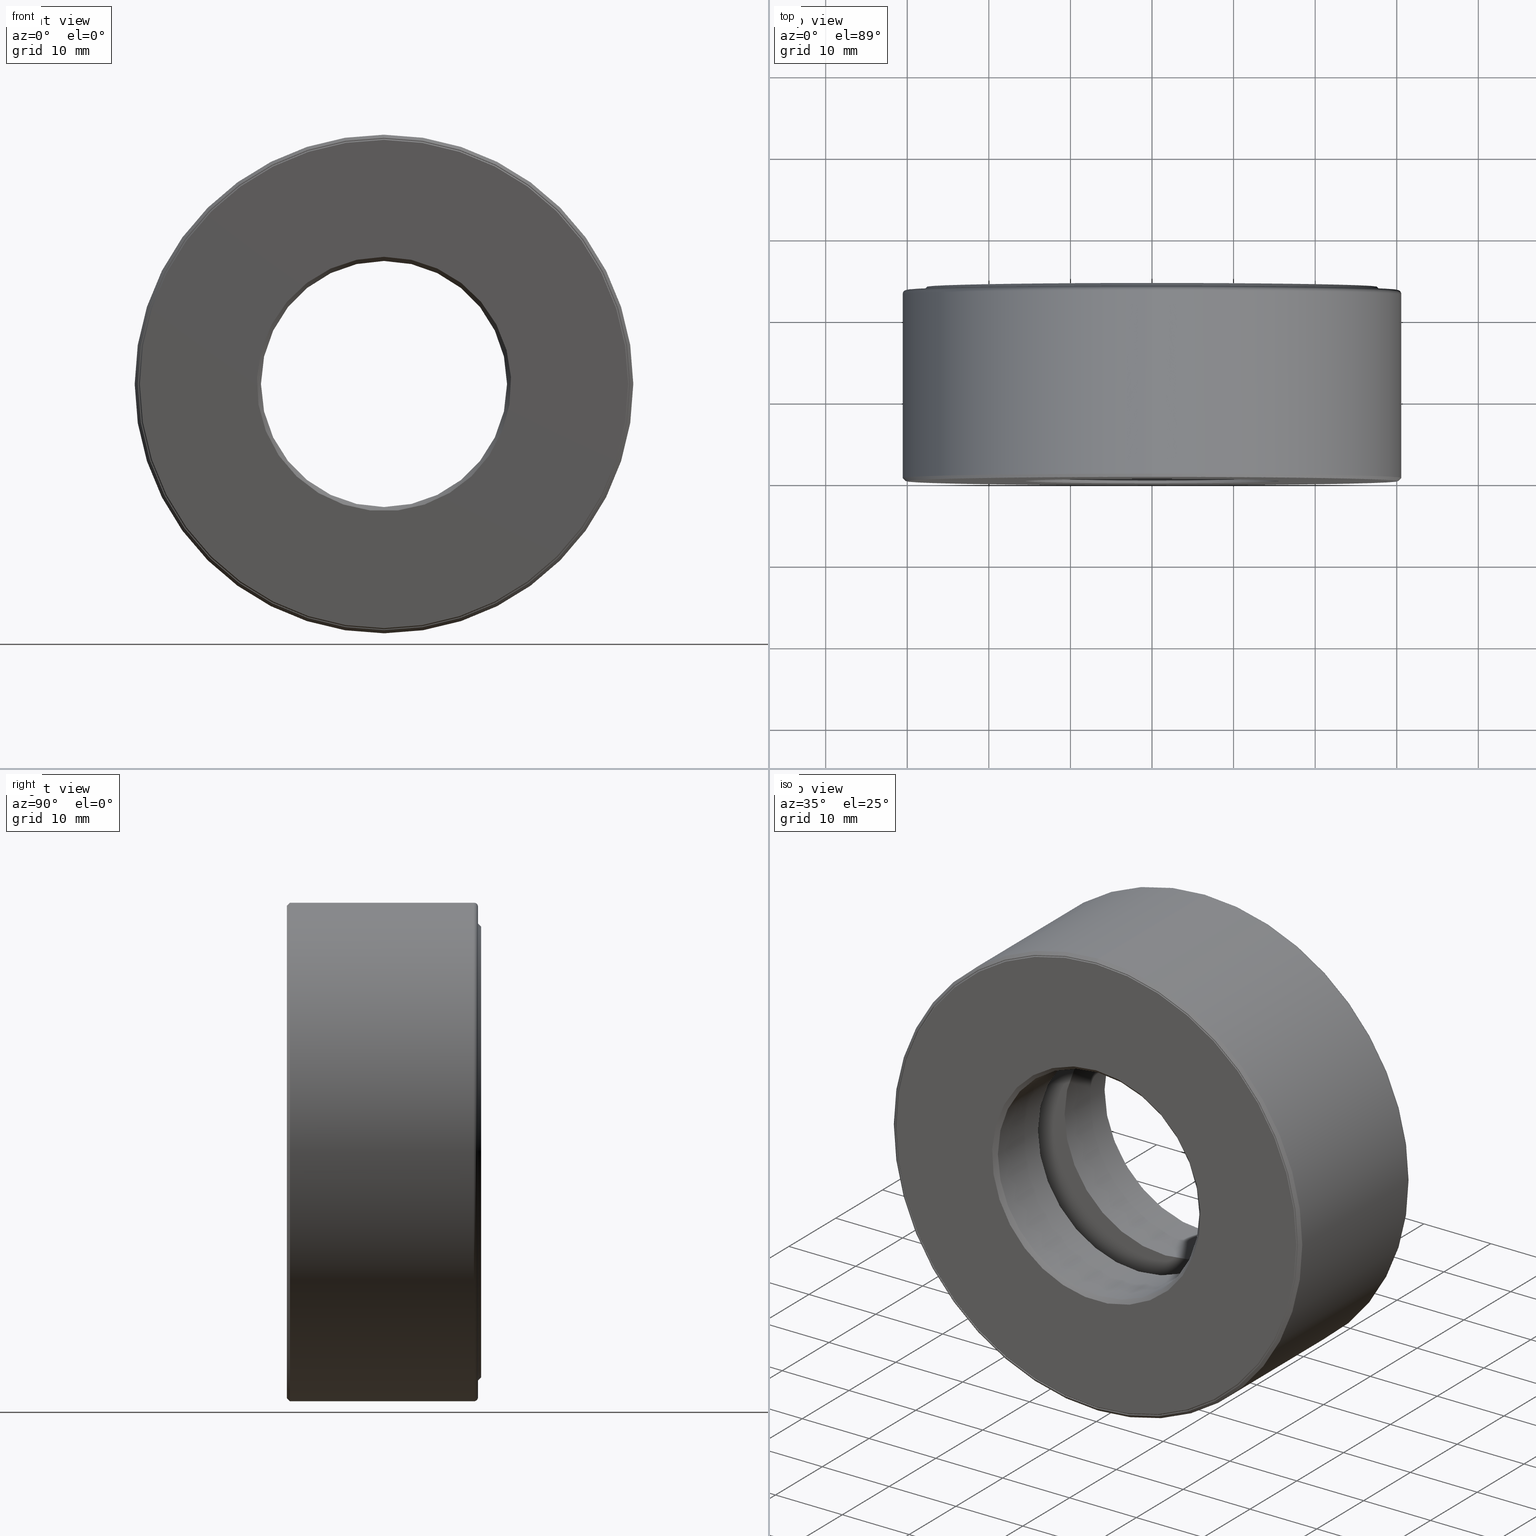
[diagram: canonical four-view strip — front | top / right | iso, engineering-drawing reading convention]
A machine part, canonical four-view strip (front | top / right | iso — engineering-drawing reading convention). The complete STEP part file that produces these views, byte-faithful:
ISO-10303-21;
HEADER;
FILE_DESCRIPTION (( 'STEP AP203' ),
    '1' );
FILE_NAME ('T-100-14.step',
    '2016-06-29T18:27:18',
    ( '' ),
    ( '' ),
    'SwSTEP 2.0',
    'SolidWorks 2016',
    '' );
FILE_SCHEMA (( 'CONFIG_CONTROL_DESIGN' ));
ENDSEC;

DATA;
#1 = AXIS2_PLACEMENT_3D ( 'NONE', #40, #498, #547 ) ;
#2 = CARTESIAN_POINT ( 'NONE',  ( 0.0000000000000000000, 0.0000000000000000000, 0.0000000000000000000 ) ) ;
#3 = ORIENTED_EDGE ( 'NONE', *, *, #193, .F. ) ;
#4 = DIRECTION ( 'NONE',  ( -0.0000000000000000000, 1.000000000000000000, -0.0000000000000000000 ) ) ;
#5 = ORIENTED_EDGE ( 'NONE', *, *, #31, .F. ) ;
#6 = ORIENTED_EDGE ( 'NONE', *, *, #23, .F. ) ;
#7 = ADVANCED_FACE ( 'NONE', ( #178, #138 ), #532, .T. ) ;
#8 = CIRCLE ( 'NONE', #173, 1.203125000000000000 ) ;
#9 = CONICAL_SURFACE ( 'NONE', #494, 0.5937500000000000000, 0.7853981633974431700 ) ;
#10 = LOCAL_TIME ( 14, 27, 18.00000000000000000, #186 ) ;
#11 = APPROVAL ( #337, 'UNSPECIFIED' ) ;
#12 = ORIENTED_EDGE ( 'NONE', *, *, #81, .F. ) ;
#13 = EDGE_CURVE ( 'NONE', #132, #132, #206, .T. ) ;
#14 = EDGE_LOOP ( 'NONE', ( #83 ) ) ;
#15 = DIRECTION ( 'NONE',  ( 0.0000000000000000000, 0.0000000000000000000, 1.000000000000000000 ) ) ;
#16 = FACE_OUTER_BOUND ( 'NONE', #462, .T. ) ;
#17 = VERTEX_POINT ( 'NONE', #72 ) ;
#18 = CARTESIAN_POINT ( 'NONE',  ( 0.0000000000000000000, -6.590143231196515200E-017, 1.183124999999999800 ) ) ;
#19 = AXIS2_PLACEMENT_3D ( 'NONE', #231, #369, #315 ) ;
#20 = ADVANCED_FACE ( 'NONE', ( #25, #385 ), #153, .T. ) ;
#21 = ORIENTED_EDGE ( 'NONE', *, *, #436, .F. ) ;
#22 = EDGE_LOOP ( 'NONE', ( #368 ) ) ;
#23 = EDGE_CURVE ( 'NONE', #540, #540, #259, .T. ) ;
#24 = CARTESIAN_POINT ( 'NONE',  ( 0.0000000000000000000, 0.5812499999999999300, 1.176125000000000100 ) ) ;
#25 = FACE_OUTER_BOUND ( 'NONE', #425, .T. ) ;
#26 = CC_DESIGN_PERSON_AND_ORGANIZATION_ASSIGNMENT ( #442, #292, ( #85 ) ) ;
#27 = FACE_OUTER_BOUND ( 'NONE', #176, .T. ) ;
#28 = FACE_BOUND ( 'NONE', #250, .T. ) ;
#29 =( NAMED_UNIT ( * ) SI_UNIT ( $, .STERADIAN. ) SOLID_ANGLE_UNIT ( ) );
#30 = DIRECTION ( 'NONE',  ( -1.000000000000000000, 0.0000000000000000000, 3.491481338843131800E-015 ) ) ;
#31 = EDGE_CURVE ( 'NONE', #583, #583, #265, .T. ) ;
#32 = EDGE_LOOP ( 'NONE', ( #215 ) ) ;
#33 = ORIENTED_EDGE ( 'NONE', *, *, #180, .F. ) ;
#34 = ADVANCED_FACE ( 'NONE', ( #63, #391 ), #294, .F. ) ;
#35 = EDGE_LOOP ( 'NONE', ( #514 ) ) ;
#36 = FACE_OUTER_BOUND ( 'NONE', #213, .T. ) ;
#37 = DIRECTION ( 'NONE',  ( 0.0000000000000000000, 0.0000000000000000000, 1.000000000000000000 ) ) ;
#38 = VERTEX_POINT ( 'NONE', #534 ) ;
#39 = COORDINATED_UNIVERSAL_TIME_OFFSET ( 5, 0, .BEHIND. ) ;
#40 = CARTESIAN_POINT ( 'NONE',  ( 0.0000000000000000000, 0.9024999999999999700, 0.0000000000000000000 ) ) ;
#41 = CC_DESIGN_APPROVAL ( #11, ( #524 ) ) ;
#42 = DIRECTION ( 'NONE',  ( 0.0000000000000000000, 0.0000000000000000000, 1.000000000000000000 ) ) ;
#43 = CARTESIAN_POINT ( 'NONE',  ( 0.0000000000000000000, 0.3562500000000000700, 0.0000000000000000000 ) ) ;
#44 = EDGE_LOOP ( 'NONE', ( #3 ) ) ;
#45 = DIRECTION ( 'NONE',  ( -0.0000000000000000000, 1.000000000000000000, -0.0000000000000000000 ) ) ;
#46 = ORIENTED_EDGE ( 'NONE', *, *, #436, .T. ) ;
#47 = EDGE_CURVE ( 'NONE', #329, #329, #350, .T. ) ;
#48 = FACE_OUTER_BOUND ( 'NONE', #561, .T. ) ;
#49 = DIRECTION ( 'NONE',  ( -0.0000000000000000000, 1.000000000000000000, 0.0000000000000000000 ) ) ;
#50 = ADVANCED_FACE ( 'NONE', ( #579, #521 ), #296, .F. ) ;
#51 = CARTESIAN_POINT ( 'NONE',  ( 0.0000000000000000000, 0.9225000000000001000, 0.0000000000000000000 ) ) ;
#52 = DIRECTION ( 'NONE',  ( 0.0000000000000000000, -1.000000000000000000, 0.0000000000000000000 ) ) ;
#53 = AXIS2_PLACEMENT_3D ( 'NONE', #106, #199, #277 ) ;
#54 = EDGE_LOOP ( 'NONE', ( #593 ) ) ;
#55 = ADVANCED_FACE ( 'NONE', ( ), #94, .T. ) ;
#56 = DIRECTION ( 'NONE',  ( -0.0000000000000000000, 1.000000000000000000, -0.0000000000000000000 ) ) ;
#57 = CARTESIAN_POINT ( 'NONE',  ( 0.0000000000000000000, 0.9174999999999997600, 0.0000000000000000000 ) ) ;
#58 = DIRECTION ( 'NONE',  ( -0.0000000000000000000, 1.000000000000000000, -0.0000000000000000000 ) ) ;
#59 = ORIENTED_EDGE ( 'NONE', *, *, #355, .F. ) ;
#60 = AXIS2_PLACEMENT_3D ( 'NONE', #86, #397, #258 ) ;
#61 = APPROVAL_DATE_TIME ( #467, #559 ) ;
#62 = DIRECTION ( 'NONE',  ( 0.0000000000000000000, -1.000000000000000000, 0.0000000000000000000 ) ) ;
#63 = FACE_OUTER_BOUND ( 'NONE', #44, .T. ) ;
#64 = DIRECTION ( 'NONE',  ( 0.0000000000000000000, -0.0000000000000000000, -1.000000000000000000 ) ) ;
#65 = VERTEX_POINT ( 'NONE', #168 ) ;
#66 = CALENDAR_DATE ( 2016, 29, 6 ) ;
#67 = AXIS2_PLACEMENT_3D ( 'NONE', #194, #143, #230 ) ;
#68 = CARTESIAN_POINT ( 'NONE',  ( 0.0000000000000000000, 0.3562499999999999000, 1.183124999999999800 ) ) ;
#69 = ORIENTED_EDGE ( 'NONE', *, *, #477, .T. ) ;
#70 = AXIS2_PLACEMENT_3D ( 'NONE', #348, #409, #508 ) ;
#71 = ADVANCED_FACE ( 'NONE', ( #596, #531 ), #88, .T. ) ;
#72 = CARTESIAN_POINT ( 'NONE',  ( 0.0000000000000000000, 0.004999999999999944600, 1.183125000000000000 ) ) ;
#73 = FACE_OUTER_BOUND ( 'NONE', #279, .T. ) ;
#74 = APPROVAL_PERSON_ORGANIZATION ( #533, #559, #76 ) ;
#75 = CARTESIAN_POINT ( 'NONE',  ( 0.0000000000000000000, 0.9024999999999999700, 1.183125000000000000 ) ) ;
#76 = APPROVAL_ROLE ( '' ) ;
#77 = AXIS2_PLACEMENT_3D ( 'NONE', #108, #423, #155 ) ;
#78 = CIRCLE ( 'NONE', #422, 1.088124999999999800 ) ;
#79 = MANIFOLD_SOLID_BREP ( 'Revolve2[1]', #507 ) ;
#80 = VERTEX_POINT ( 'NONE', #291 ) ;
#81 = EDGE_CURVE ( 'NONE', #80, #80, #450, .T. ) ;
#82 = CARTESIAN_POINT ( 'NONE',  ( 0.0000000000000000000, 0.9225000000000001000, 0.0000000000000000000 ) ) ;
#83 = ORIENTED_EDGE ( 'NONE', *, *, #31, .T. ) ;
#84 = DIRECTION ( 'NONE',  ( 0.0000000000000000000, -1.000000000000000000, 0.0000000000000000000 ) ) ;
#85 = SECURITY_CLASSIFICATION ( '', '', #584 ) ;
#86 = CARTESIAN_POINT ( 'NONE',  ( 0.0000000000000000000, 0.5812499999999999300, 0.0000000000000000000 ) ) ;
#87 = DESIGN_CONTEXT ( 'detailed design', #333, 'design' ) ;
#88 = CONICAL_SURFACE ( 'NONE', #469, 1.088124999999999800, 0.7853981633974498300 ) ;
#89 = LOCAL_TIME ( 14, 27, 18.00000000000000000, #39 ) ;
#90 = CARTESIAN_POINT ( 'NONE',  ( 0.0000000000000000000, 0.5812499999999999300, 0.0000000000000000000 ) ) ;
#91 = ADVANCED_FACE ( 'NONE', ( #334, #582 ), #551, .F. ) ;
#92 = ORIENTED_EDGE ( 'NONE', *, *, #13, .F. ) ;
#93 = DIRECTION ( 'NONE',  ( 0.0000000000000000000, 0.0000000000000000000, -1.000000000000000000 ) ) ;
#94 = SPHERICAL_SURFACE ( 'NONE', #461, 0.1874999999999999400 ) ;
#95 = VERTEX_POINT ( 'NONE', #75 ) ;
#96 = CARTESIAN_POINT ( 'NONE',  ( 0.0000000000000000000, -6.829619984160658000E-017, 0.0000000000000000000 ) ) ;
#97 = DIRECTION ( 'NONE',  ( 0.0000000000000000000, 0.0000000000000000000, 1.000000000000000000 ) ) ;
#98 = AXIS2_PLACEMENT_3D ( 'NONE', #420, #263, #227 ) ;
#99 = CARTESIAN_POINT ( 'NONE',  ( 0.0000000000000000000, 0.0000000000000000000, 0.0000000000000000000 ) ) ;
#100 = ORIENTED_EDGE ( 'NONE', *, *, #152, .T. ) ;
#101 = CARTESIAN_POINT ( 'NONE',  ( 0.0000000000000000000, 0.9375000000000000000, 0.0000000000000000000 ) ) ;
#102 = CIRCLE ( 'NONE', #497, 0.5937500000000000000 ) ;
#103 = DIRECTION ( 'NONE',  ( 0.0000000000000000000, 0.0000000000000000000, 1.000000000000000000 ) ) ;
#104 = APPROVAL_PERSON_ORGANIZATION ( #554, #11, #390 ) ;
#105 = CARTESIAN_POINT ( 'NONE',  ( 1.004991548302120000E-015, 0.5812499999999999300, 0.0000000000000000000 ) ) ;
#106 = CARTESIAN_POINT ( 'NONE',  ( 0.0000000000000000000, -6.509481547403127300E-017, 0.0000000000000000000 ) ) ;
#107 = CARTESIAN_POINT ( 'NONE',  ( 0.0000000000000000000, 0.02000000000000033300, 0.0000000000000000000 ) ) ;
#108 = CARTESIAN_POINT ( 'NONE',  ( 0.0000000000000000000, 0.0000000000000000000, 0.0000000000000000000 ) ) ;
#109 = FACE_BOUND ( 'NONE', #163, .T. ) ;
#110 = AXIS2_PLACEMENT_3D ( 'NONE', #332, #439, #488 ) ;
#111 = TOROIDAL_SURFACE ( 'NONE', #327, 0.9866249999999999700, 0.1874999999999999700 ) ;
#112 = CARTESIAN_POINT ( 'NONE',  ( 0.0000000000000000000, 0.9174999999999997600, 0.0000000000000000000 ) ) ;
#113 = EDGE_CURVE ( 'NONE', #510, #510, #8, .T. ) ;
#114 = EDGE_LOOP ( 'NONE', ( #526 ) ) ;
#115 = CARTESIAN_POINT ( 'NONE',  ( 0.0000000000000000000, 0.3562500000000000100, 1.136625000000000000 ) ) ;
#116 = FACE_BOUND ( 'NONE', #375, .T. ) ;
#117 = CARTESIAN_POINT ( 'NONE',  ( 0.0000000000000000000, 0.5812499999999999300, 0.8366249999999999500 ) ) ;
#118 = CONICAL_SURFACE ( 'NONE', #317, 1.188125000000000100, 0.7853981633974460600 ) ;
#119 = AXIS2_PLACEMENT_3D ( 'NONE', #105, #365, #470 ) ;
#120 = DIRECTION ( 'NONE',  ( -0.0000000000000000000, 1.000000000000000000, -0.0000000000000000000 ) ) ;
#121 = DIMENSIONAL_EXPONENTS ( 1.000000000000000000, 0.0000000000000000000, 0.0000000000000000000, 0.0000000000000000000, 0.0000000000000000000, 0.0000000000000000000, 0.0000000000000000000 ) ;
#122 = EDGE_LOOP ( 'NONE', ( #6 ) ) ;
#123 = FACE_OUTER_BOUND ( 'NONE', #137, .T. ) ;
#124 = FACE_BOUND ( 'NONE', #371, .T. ) ;
#125 = DATE_AND_TIME ( #66, #89 ) ;
#126 = PERSON_AND_ORGANIZATION_ROLE ( 'design_supplier' ) ;
#127 = AXIS2_PLACEMENT_3D ( 'NONE', #195, #58, #151 ) ;
#128 = EDGE_LOOP ( 'NONE', ( #59 ) ) ;
#129 = DIRECTION ( 'NONE',  ( 0.0000000000000000000, -0.0000000000000000000, -1.000000000000000000 ) ) ;
#130 = APPLICATION_PROTOCOL_DEFINITION ( 'international standard', 'config_control_design', 1994, #333 ) ;
#131 = FACE_BOUND ( 'NONE', #440, .T. ) ;
#132 = VERTEX_POINT ( 'NONE', #576 ) ;
#133 = MECHANICAL_CONTEXT ( 'NONE', #443, 'mechanical' ) ;
#134 = EDGE_CURVE ( 'NONE', #202, #202, #102, .T. ) ;
#135 = ADVANCED_FACE ( 'NONE', ( #403, #417 ), #552, .T. ) ;
#136 = ADVANCED_FACE ( 'NONE', ( #123, #435 ), #164, .F. ) ;
#137 = EDGE_LOOP ( 'NONE', ( #416 ) ) ;
#138 = FACE_OUTER_BOUND ( 'NONE', #239, .T. ) ;
#139 = LOCAL_TIME ( 14, 27, 18.00000000000000000, #590 ) ;
#140 = PRODUCT_DEFINITION_FORMATION_WITH_SPECIFIED_SOURCE ( 'ANY', '', #392, .NOT_KNOWN. ) ;
#141 = CARTESIAN_POINT ( 'NONE',  ( 0.9866249999999999700, 0.4687499999999998900, -6.889565551872212700E-015 ) ) ;
#142 = EDGE_LOOP ( 'NONE', ( #575 ) ) ;
#143 = DIRECTION ( 'NONE',  ( 0.0000000000000000000, -1.000000000000000000, 0.0000000000000000000 ) ) ;
#144 = EDGE_LOOP ( 'NONE', ( #205 ) ) ;
#145 = FACE_OUTER_BOUND ( 'NONE', #35, .T. ) ;
#146 = DIRECTION ( 'NONE',  ( 0.0000000000000000000, 0.0000000000000000000, 1.000000000000000000 ) ) ;
#147 = CC_DESIGN_PERSON_AND_ORGANIZATION_ASSIGNMENT ( #414, #126, ( #140 ) ) ;
#148 = PLANE ( 'NONE',  #119 ) ;
#149 = CARTESIAN_POINT ( 'NONE',  ( 0.0000000000000000000, 0.004999999999999944600, 0.0000000000000000000 ) ) ;
#150 = MANIFOLD_SOLID_BREP ( 'BALLS[1]', #232 ) ;
#151 = DIRECTION ( 'NONE',  ( 0.0000000000000000000, 0.0000000000000000000, 1.000000000000000000 ) ) ;
#152 = EDGE_CURVE ( 'NONE', #553, #553, #273, .T. ) ;
#153 = CYLINDRICAL_SURFACE ( 'NONE', #260, 1.203125000000000000 ) ;
#154 = DIRECTION ( 'NONE',  ( 0.0000000000000000000, 0.0000000000000000000, 1.000000000000000000 ) ) ;
#155 = DIRECTION ( 'NONE',  ( 0.0000000000000000000, 0.0000000000000000000, 1.000000000000000000 ) ) ;
#156 = ORIENTED_EDGE ( 'NONE', *, *, #448, .F. ) ;
#157 = EDGE_LOOP ( 'NONE', ( #529 ) ) ;
#158 = ORIENTED_EDGE ( 'NONE', *, *, #349, .T. ) ;
#159 = CIRCLE ( 'NONE', #336, 0.5937500000000000000 ) ;
#160 = AXIS2_PLACEMENT_3D ( 'NONE', #107, #52, #356 ) ;
#161 = FACE_OUTER_BOUND ( 'NONE', #54, .T. ) ;
#162 = AXIS2_PLACEMENT_3D ( 'NONE', #345, #536, #389 ) ;
#163 = EDGE_LOOP ( 'NONE', ( #280 ) ) ;
#164 = CYLINDRICAL_SURFACE ( 'NONE', #254, 0.5937500000000000000 ) ;
#165 = CONICAL_SURFACE ( 'NONE', #160, 0.5937499999999998900, 0.7853981633974449500 ) ;
#166 = DATE_AND_TIME ( #247, #283 ) ;
#167 = CARTESIAN_POINT ( 'NONE',  ( -1.634469013193364700E-016, 0.5812499999999999300, 0.0000000000000000000 ) ) ;
#168 = CARTESIAN_POINT ( 'NONE',  ( 0.0000000000000000000, -6.829619984160658000E-017, 1.188125000000000100 ) ) ;
#169 = AXIS2_PLACEMENT_3D ( 'NONE', #112, #428, #203 ) ;
#170 = APPLICATION_PROTOCOL_DEFINITION ( 'international standard', 'config_control_design', 1994, #443 ) ;
#171 = ORIENTED_EDGE ( 'NONE', *, *, #511, .F. ) ;
#172 = FACE_BOUND ( 'NONE', #388, .T. ) ;
#173 = AXIS2_PLACEMENT_3D ( 'NONE', #182, #303, #503 ) ;
#174 = APPROVAL_STATUS ( 'not_yet_approved' ) ;
#175 = DIRECTION ( 'NONE',  ( -0.0000000000000000000, 1.000000000000000000, -0.0000000000000000000 ) ) ;
#176 = EDGE_LOOP ( 'NONE', ( #92 ) ) ;
#177 = CC_DESIGN_DATE_AND_TIME_ASSIGNMENT ( #166, #446, ( #524 ) ) ;
#178 = FACE_BOUND ( 'NONE', #447, .T. ) ;
#179 = CALENDAR_DATE ( 2016, 29, 6 ) ;
#180 = EDGE_CURVE ( 'NONE', #393, #393, #562, .T. ) ;
#181 = DIRECTION ( 'NONE',  ( -0.0000000000000000000, 1.000000000000000000, -0.0000000000000000000 ) ) ;
#182 = CARTESIAN_POINT ( 'NONE',  ( 0.0000000000000000000, 0.01499999999999997700, 0.0000000000000000000 ) ) ;
#183 = SPHERICAL_SURFACE ( 'NONE', #530, 0.1874999999999999400 ) ;
#184 = FACE_OUTER_BOUND ( 'NONE', #433, .T. ) ;
#185 = ADVANCED_FACE ( 'NONE', ( #234, #316 ), #289, .F. ) ;
#186 = COORDINATED_UNIVERSAL_TIME_OFFSET ( 5, 0, .BEHIND. ) ;
#187 = CARTESIAN_POINT ( 'NONE',  ( 0.0000000000000000000, 0.9375000000000000000, 0.0000000000000000000 ) ) ;
#188 = AXIS2_PLACEMENT_3D ( 'NONE', #101, #224, #556 ) ;
#189 = DIRECTION ( 'NONE',  ( -0.0000000000000000000, 1.000000000000000000, -0.0000000000000000000 ) ) ;
#190 = CARTESIAN_POINT ( 'NONE',  ( 0.0000000000000000000, -6.509481547403127300E-017, 0.0000000000000000000 ) ) ;
#191 = DIRECTION ( 'NONE',  ( -0.0000000000000000000, 1.000000000000000000, -0.0000000000000000000 ) ) ;
#192 = DIRECTION ( 'NONE',  ( 0.0000000000000000000, 0.0000000000000000000, 1.000000000000000000 ) ) ;
#193 = EDGE_CURVE ( 'NONE', #458, #458, #197, .T. ) ;
#194 = CARTESIAN_POINT ( 'NONE',  ( 0.0000000000000000000, 0.3562500000000000700, 0.0000000000000000000 ) ) ;
#195 = CARTESIAN_POINT ( 'NONE',  ( 0.0000000000000000000, 0.3562500000000000100, 0.0000000000000000000 ) ) ;
#196 = ADVANCED_FACE ( 'NONE', ( #36, #499 ), #299, .T. ) ;
#197 = CIRCLE ( 'NONE', #1, 1.123125000000000200 ) ;
#198 = COORDINATED_UNIVERSAL_TIME_OFFSET ( 5, 0, .BEHIND. ) ;
#199 = DIRECTION ( 'NONE',  ( -0.0000000000000000000, 1.000000000000000000, -0.0000000000000000000 ) ) ;
#200 =( GEOMETRIC_REPRESENTATION_CONTEXT ( 3 ) GLOBAL_UNCERTAINTY_ASSIGNED_CONTEXT ( ( #543 ) ) GLOBAL_UNIT_ASSIGNED_CONTEXT ( ( #210, #248, #29 ) ) REPRESENTATION_CONTEXT ( 'NONE', 'WORKASPACE' ) );
#201 = CLOSED_SHELL ( 'NONE', ( #218 ) ) ;
#202 = VERTEX_POINT ( 'NONE', #580 ) ;
#203 = DIRECTION ( 'NONE',  ( 0.0000000000000000000, 0.0000000000000000000, 1.000000000000000000 ) ) ;
#204 = AXIS2_PLACEMENT_3D ( 'NONE', #187, #49, #97 ) ;
#205 = ORIENTED_EDGE ( 'NONE', *, *, #180, .T. ) ;
#206 = CIRCLE ( 'NONE', #233, 0.8366249999999999500 ) ;
#207 = ADVANCED_FACE ( 'NONE', ( #441, #471 ), #320, .F. ) ;
#208 = FACE_BOUND ( 'NONE', #285, .T. ) ;
#209 = VERTEX_POINT ( 'NONE', #324 ) ;
#210 =( CONVERSION_BASED_UNIT ( 'INCH', #501 ) LENGTH_UNIT ( ) NAMED_UNIT ( #121 ) );
#211 = CARTESIAN_POINT ( 'NONE',  ( 3.444782775936106400E-015, 0.4687499999999998900, 0.9866249999999999700 ) ) ;
#212 = AXIS2_PLACEMENT_3D ( 'NONE', #376, #421, #568 ) ;
#213 = EDGE_LOOP ( 'NONE', ( #100 ) ) ;
#214 = DATE_TIME_ROLE ( 'classification_date' ) ;
#215 = ORIENTED_EDGE ( 'NONE', *, *, #81, .T. ) ;
#216 = AXIS2_PLACEMENT_3D ( 'NONE', #548, #406, #308 ) ;
#217 = APPROVAL_DATE_TIME ( #125, #267 ) ;
#218 = ADVANCED_FACE ( 'NONE', ( ), #183, .T. ) ;
#219 = EDGE_LOOP ( 'NONE', ( #325 ) ) ;
#220 = TOROIDAL_SURFACE ( 'NONE', #601, 1.183125000000000000, 0.02000000000000005900 ) ;
#221 = CC_DESIGN_APPROVAL ( #559, ( #140 ) ) ;
#222 = CARTESIAN_POINT ( 'NONE',  ( 0.0000000000000000000, 0.3562499999999999000, 0.0000000000000000000 ) ) ;
#223 = DIRECTION ( 'NONE',  ( 0.0000000000000000000, 0.0000000000000000000, 1.000000000000000000 ) ) ;
#224 = DIRECTION ( 'NONE',  ( -0.0000000000000000000, 1.000000000000000000, -0.0000000000000000000 ) ) ;
#225 = EDGE_LOOP ( 'NONE', ( #238 ) ) ;
#226 = AXIS2_PLACEMENT_3D ( 'NONE', #90, #264, #600 ) ;
#227 = DIRECTION ( 'NONE',  ( 0.0000000000000000000, 0.0000000000000000000, 1.000000000000000000 ) ) ;
#228 = ADVANCED_FACE ( 'NONE', ( #109, #73 ), #148, .T. ) ;
#229 = SPHERICAL_SURFACE ( 'NONE', #456, 0.1874999999999999400 ) ;
#230 = DIRECTION ( 'NONE',  ( 0.0000000000000000000, -0.0000000000000000000, -1.000000000000000000 ) ) ;
#231 = CARTESIAN_POINT ( 'NONE',  ( 0.0000000000000000000, 0.9024999999999999700, 0.0000000000000000000 ) ) ;
#232 = CLOSED_SHELL ( 'NONE', ( #55 ) ) ;
#233 = AXIS2_PLACEMENT_3D ( 'NONE', #343, #175, #491 ) ;
#234 = FACE_OUTER_BOUND ( 'NONE', #14, .T. ) ;
#235 = VERTEX_POINT ( 'NONE', #68 ) ;
#236 = CALENDAR_DATE ( 2016, 29, 6 ) ;
#237 = MANIFOLD_SOLID_BREP ( 'BALLS[3]', #287 ) ;
#238 = ORIENTED_EDGE ( 'NONE', *, *, #319, .F. ) ;
#239 = EDGE_LOOP ( 'NONE', ( #5 ) ) ;
#240 = AXIS2_PLACEMENT_3D ( 'NONE', #190, #56, #464 ) ;
#241 = FACE_BOUND ( 'NONE', #144, .T. ) ;
#242 = FACE_OUTER_BOUND ( 'NONE', #22, .T. ) ;
#243 = CARTESIAN_POINT ( 'NONE',  ( 0.0000000000000000000, 0.02000000000000033300, 0.5937499999999998900 ) ) ;
#244 = CARTESIAN_POINT ( 'NONE',  ( 0.0000000000000000000, 0.9174999999999997600, 0.5937500000000000000 ) ) ;
#245 = EDGE_LOOP ( 'NONE', ( #309 ) ) ;
#246 = EDGE_LOOP ( 'NONE', ( #567 ) ) ;
#247 = CALENDAR_DATE ( 2016, 29, 6 ) ;
#248 =( NAMED_UNIT ( * ) PLANE_ANGLE_UNIT ( ) SI_UNIT ( $, .RADIAN. ) );
#249 = ADVANCED_FACE ( 'NONE', ( #457, #208 ), #310, .F. ) ;
#250 = EDGE_LOOP ( 'NONE', ( #538 ) ) ;
#251 = EDGE_LOOP ( 'NONE', ( #399 ) ) ;
#252 = CARTESIAN_POINT ( 'NONE',  ( 0.0000000000000000000, -6.590143231196515200E-017, 0.0000000000000000000 ) ) ;
#253 = CIRCLE ( 'NONE', #581, 1.203125000000000000 ) ;
#254 = AXIS2_PLACEMENT_3D ( 'NONE', #598, #460, #500 ) ;
#255 = VERTEX_POINT ( 'NONE', #429 ) ;
#256 = APPROVAL_STATUS ( 'not_yet_approved' ) ;
#257 = CLOSED_SHELL ( 'NONE', ( #228, #185, #7, #136, #528, #135, #71, #196 ) ) ;
#258 = DIRECTION ( 'NONE',  ( 0.0000000000000000000, 0.0000000000000000000, 1.000000000000000000 ) ) ;
#259 = CIRCLE ( 'NONE', #555, 1.176124999999999900 ) ;
#260 = AXIS2_PLACEMENT_3D ( 'NONE', #424, #573, #282 ) ;
#261 = VERTEX_POINT ( 'NONE', #434 ) ;
#262 = DIRECTION ( 'NONE',  ( 0.0000000000000000000, 0.0000000000000000000, 1.000000000000000000 ) ) ;
#263 = DIRECTION ( 'NONE',  ( -0.0000000000000000000, 1.000000000000000000, -0.0000000000000000000 ) ) ;
#264 = DIRECTION ( 'NONE',  ( -0.0000000000000000000, 1.000000000000000000, -0.0000000000000000000 ) ) ;
#265 = CIRCLE ( 'NONE', #60, 0.8366249999999999500 ) ;
#266 = VERTEX_POINT ( 'NONE', #479 ) ;
#267 = APPROVAL ( #256, 'UNSPECIFIED' ) ;
#268 = DIRECTION ( 'NONE',  ( -0.0000000000000000000, 1.000000000000000000, -0.0000000000000000000 ) ) ;
#269 = CARTESIAN_POINT ( 'NONE',  ( -2.398680184444861200E-031, -6.709881607678586600E-017, 0.0000000000000000000 ) ) ;
#270 = DIRECTION ( 'NONE',  ( -0.0000000000000000000, 1.000000000000000000, 0.0000000000000000000 ) ) ;
#271 = ORIENTED_EDGE ( 'NONE', *, *, #293, .T. ) ;
#272 = EDGE_CURVE ( 'NONE', #379, #379, #78, .T. ) ;
#273 = CIRCLE ( 'NONE', #226, 1.176125000000000100 ) ;
#274 = CARTESIAN_POINT ( 'NONE',  ( -1.033434832780831900E-014, 0.4687499999999998900, -0.9866249999999999700 ) ) ;
#275 = CYLINDRICAL_SURFACE ( 'NONE', #304, 1.183125000000000000 ) ;
#276 = DIRECTION ( 'NONE',  ( 0.0000000000000000000, 0.0000000000000000000, 1.000000000000000000 ) ) ;
#277 = DIRECTION ( 'NONE',  ( 0.0000000000000000000, 0.0000000000000000000, 1.000000000000000000 ) ) ;
#278 = CC_DESIGN_PERSON_AND_ORGANIZATION_ASSIGNMENT ( #352, #387, ( #140 ) ) ;
#279 = EDGE_LOOP ( 'NONE', ( #483 ) ) ;
#280 = ORIENTED_EDGE ( 'NONE', *, *, #319, .T. ) ;
#281 = VERTEX_POINT ( 'NONE', #288 ) ;
#282 = DIRECTION ( 'NONE',  ( 0.0000000000000000000, 0.0000000000000000000, 1.000000000000000000 ) ) ;
#283 = LOCAL_TIME ( 14, 27, 18.00000000000000000, #198 ) ;
#284 = DIRECTION ( 'NONE',  ( -0.0000000000000000000, 1.000000000000000000, -0.0000000000000000000 ) ) ;
#285 = EDGE_LOOP ( 'NONE', ( #377 ) ) ;
#286 = CARTESIAN_POINT ( 'NONE',  ( 0.0000000000000000000, 0.9024999999999999700, 0.0000000000000000000 ) ) ;
#287 = CLOSED_SHELL ( 'NONE', ( #512 ) ) ;
#288 = CARTESIAN_POINT ( 'NONE',  ( 0.0000000000000000000, 0.9375000000000000000, 0.6137500000000001300 ) ) ;
#289 = TOROIDAL_SURFACE ( 'NONE', #70, 0.9866249999999999700, 0.1874999999999999700 ) ;
#290 = APPROVAL_PERSON_ORGANIZATION ( #486, #267, #537 ) ;
#291 = CARTESIAN_POINT ( 'NONE',  ( 0.0000000000000000000, 0.9225000000000001000, 1.123125000000000200 ) ) ;
#292 = PERSON_AND_ORGANIZATION_ROLE ( 'classification_officer' ) ;
#293 = EDGE_CURVE ( 'NONE', #261, #261, #159, .T. ) ;
#294 = CYLINDRICAL_SURFACE ( 'NONE', #162, 1.123125000000000200 ) ;
#295 = PERSON_AND_ORGANIZATION ( #346, #571 ) ;
#296 = PLANE ( 'NONE',  #427 ) ;
#297 = CLOSED_SHELL ( 'NONE', ( #432 ) ) ;
#298 = EDGE_CURVE ( 'NONE', #351, #351, #341, .T. ) ;
#299 = CYLINDRICAL_SURFACE ( 'NONE', #400, 1.176125000000000100 ) ;
#300 = DIRECTION ( 'NONE',  ( -0.0000000000000000000, 1.000000000000000000, -0.0000000000000000000 ) ) ;
#301 = PRODUCT_DEFINITION_SHAPE ( 'NONE', 'NONE',  #524 ) ;
#302 = CARTESIAN_POINT ( 'NONE',  ( 0.0000000000000000000, 0.9225000000000001000, 0.0000000000000000000 ) ) ;
#303 = DIRECTION ( 'NONE',  ( -0.0000000000000000000, 1.000000000000000000, -0.0000000000000000000 ) ) ;
#304 = AXIS2_PLACEMENT_3D ( 'NONE', #2, #314, #307 ) ;
#305 = CIRCLE ( 'NONE', #396, 1.183125000000000000 ) ;
#306 = COORDINATED_UNIVERSAL_TIME_OFFSET ( 5, 0, .BEHIND. ) ;
#307 = DIRECTION ( 'NONE',  ( 0.0000000000000000000, 0.0000000000000000000, 1.000000000000000000 ) ) ;
#308 = DIRECTION ( 'NONE',  ( 0.0000000000000000000, 0.0000000000000000000, 1.000000000000000000 ) ) ;
#309 = ORIENTED_EDGE ( 'NONE', *, *, #380, .T. ) ;
#310 = PLANE ( 'NONE',  #539 ) ;
#311 = ADVANCED_FACE ( 'NONE', ( #569, #116 ), #513, .F. ) ;
#312 = EDGE_LOOP ( 'NONE', ( #398 ) ) ;
#313 = ADVANCED_FACE ( 'NONE', ( #16, #131 ), #378, .T. ) ;
#314 = DIRECTION ( 'NONE',  ( -0.0000000000000000000, 1.000000000000000000, -0.0000000000000000000 ) ) ;
#315 = DIRECTION ( 'NONE',  ( 0.0000000000000000000, 0.0000000000000000000, 1.000000000000000000 ) ) ;
#316 = FACE_OUTER_BOUND ( 'NONE', #225, .T. ) ;
#317 = AXIS2_PLACEMENT_3D ( 'NONE', #96, #189, #418 ) ;
#318 = DIRECTION ( 'NONE',  ( 0.0000000000000000000, 0.0000000000000000000, 1.000000000000000000 ) ) ;
#319 = EDGE_CURVE ( 'NONE', #413, #413, #604, .T. ) ;
#320 = CYLINDRICAL_SURFACE ( 'NONE', #216, 0.5937500000000000000 ) ;
#321 = DIRECTION ( 'NONE',  ( 1.047444401652939500E-014, 0.0000000000000000000, 1.000000000000000000 ) ) ;
#322 = CIRCLE ( 'NONE', #169, 0.5937500000000000000 ) ;
#323 = EDGE_CURVE ( 'NONE', #209, #209, #253, .T. ) ;
#324 = CARTESIAN_POINT ( 'NONE',  ( 0.0000000000000000000, 0.9024999999999999700, 1.203125000000000000 ) ) ;
#325 = ORIENTED_EDGE ( 'NONE', *, *, #13, .T. ) ;
#326 = EDGE_LOOP ( 'NONE', ( #156 ) ) ;
#327 = AXIS2_PLACEMENT_3D ( 'NONE', #468, #191, #42 ) ;
#328 = ADVANCED_FACE ( 'NONE', ( #145, #241 ), #165, .F. ) ;
#329 = VERTEX_POINT ( 'NONE', #18 ) ;
#330 = DATE_AND_TIME ( #179, #502 ) ;
#331 = CARTESIAN_POINT ( 'NONE',  ( 0.0000000000000000000, 0.01499999999999997700, 1.203125000000000000 ) ) ;
#332 = CARTESIAN_POINT ( 'NONE',  ( 0.0000000000000000000, 0.0000000000000000000, 0.0000000000000000000 ) ) ;
#333 = APPLICATION_CONTEXT ( 'configuration controlled 3d designs of mechanical parts and assemblies' ) ;
#334 = FACE_OUTER_BOUND ( 'NONE', #481, .T. ) ;
#335 = CYLINDRICAL_SURFACE ( 'NONE', #77, 1.183125000000000000 ) ;
#336 = AXIS2_PLACEMENT_3D ( 'NONE', #465, #605, #192 ) ;
#337 = APPROVAL_STATUS ( 'not_yet_approved' ) ;
#338 = ORIENTED_EDGE ( 'NONE', *, *, #298, .F. ) ;
#339 = ORIENTED_EDGE ( 'NONE', *, *, #349, .F. ) ;
#340 = AXIS2_PLACEMENT_3D ( 'NONE', #453, #45, #412 ) ;
#341 = CIRCLE ( 'NONE', #127, 1.136625000000000000 ) ;
#342 = VERTEX_POINT ( 'NONE', #244 ) ;
#343 = CARTESIAN_POINT ( 'NONE',  ( 0.0000000000000000000, 0.3562500000000000700, 0.0000000000000000000 ) ) ;
#344 = MANIFOLD_SOLID_BREP ( 'Revolve3', #201 ) ;
#345 = CARTESIAN_POINT ( 'NONE',  ( 0.0000000000000000000, 0.0000000000000000000, 0.0000000000000000000 ) ) ;
#346 = PERSON ( 'UNSPECIFIED', 'UNSPECIFIED', 'UNSPECIFIED', ('UNSPECIFIED'), ('UNSPECIFIED'), ('UNSPECIFIED') ) ;
#347 = ORIENTED_EDGE ( 'NONE', *, *, #323, .F. ) ;
#348 = CARTESIAN_POINT ( 'NONE',  ( 0.0000000000000000000, 0.4687499999999999400, 0.0000000000000000000 ) ) ;
#349 = EDGE_CURVE ( 'NONE', #38, #38, #359, .T. ) ;
#350 = CIRCLE ( 'NONE', #578, 1.183124999999999800 ) ;
#351 = VERTEX_POINT ( 'NONE', #115 ) ;
#352 = PERSON_AND_ORGANIZATION ( #346, #571 ) ;
#353 = PLANE ( 'NONE',  #67 ) ;
#354 = DIRECTION ( 'NONE',  ( -0.0000000000000000000, 1.000000000000000000, -0.0000000000000000000 ) ) ;
#355 = EDGE_CURVE ( 'NONE', #281, #281, #588, .T. ) ;
#356 = DIRECTION ( 'NONE',  ( 0.0000000000000000000, 0.0000000000000000000, -1.000000000000000000 ) ) ;
#357 = ORIENTED_EDGE ( 'NONE', *, *, #293, .F. ) ;
#358 = DIRECTION ( 'NONE',  ( -0.0000000000000000000, 1.000000000000000000, 0.0000000000000000000 ) ) ;
#359 = CIRCLE ( 'NONE', #480, 1.183125000000000000 ) ;
#360 = ADVANCED_BREP_SHAPE_REPRESENTATION ( 'T-100-14', ( #79, #475, #344, #150, #572, #237, #110 ), #200 ) ;
#361 = PRODUCT_RELATED_PRODUCT_CATEGORY ( 'detail', '', ( #392 ) ) ;
#362 = FACE_BOUND ( 'NONE', #326, .T. ) ;
#363 = DIRECTION ( 'NONE',  ( -0.0000000000000000000, 1.000000000000000000, -0.0000000000000000000 ) ) ;
#364 = ADVANCED_FACE ( 'NONE', ( #509, #476 ), #275, .F. ) ;
#365 = DIRECTION ( 'NONE',  ( 0.0000000000000000000, -1.000000000000000000, 0.0000000000000000000 ) ) ;
#366 = DIRECTION ( 'NONE',  ( 0.0000000000000000000, 0.0000000000000000000, 1.000000000000000000 ) ) ;
#367 = AXIS2_PLACEMENT_3D ( 'NONE', #592, #358, #223 ) ;
#368 = ORIENTED_EDGE ( 'NONE', *, *, #585, .T. ) ;
#369 = DIRECTION ( 'NONE',  ( -0.0000000000000000000, 1.000000000000000000, 0.0000000000000000000 ) ) ;
#370 = ORIENTED_EDGE ( 'NONE', *, *, #272, .F. ) ;
#371 = EDGE_LOOP ( 'NONE', ( #338 ) ) ;
#372 = CARTESIAN_POINT ( 'NONE',  ( -5.232370149155376900E-016, 0.3562499999999999000, 0.0000000000000000000 ) ) ;
#373 = CARTESIAN_POINT ( 'NONE',  ( 0.0000000000000000000, 0.9024999999999999700, 0.0000000000000000000 ) ) ;
#374 = CC_DESIGN_PERSON_AND_ORGANIZATION_ASSIGNMENT ( #451, #395, ( #392 ) ) ;
#375 = EDGE_LOOP ( 'NONE', ( #545 ) ) ;
#376 = CARTESIAN_POINT ( 'NONE',  ( 0.0000000000000000000, 6.829619984160658000E-017, 0.0000000000000000000 ) ) ;
#377 = ORIENTED_EDGE ( 'NONE', *, *, #47, .T. ) ;
#378 = CONICAL_SURFACE ( 'NONE', #240, 1.178125000000000100, 0.7853981633974420600 ) ;
#379 = VERTEX_POINT ( 'NONE', #527 ) ;
#380 = EDGE_CURVE ( 'NONE', #235, #235, #472, .T. ) ;
#381 = CARTESIAN_POINT ( 'NONE',  ( 0.0000000000000000000, 0.5812499999999999300, 1.136625000000000000 ) ) ;
#382 = ADVANCED_FACE ( 'NONE', ( #27, #48 ), #111, .F. ) ;
#383 = ORIENTED_EDGE ( 'NONE', *, *, #23, .T. ) ;
#384 = CARTESIAN_POINT ( 'NONE',  ( 0.0000000000000000000, 0.9024999999999999700, 1.123125000000000200 ) ) ;
#385 = FACE_OUTER_BOUND ( 'NONE', #550, .T. ) ;
#386 = CIRCLE ( 'NONE', #212, 0.6137500000000000200 ) ;
#387 = PERSON_AND_ORGANIZATION_ROLE ( 'creator' ) ;
#388 = EDGE_LOOP ( 'NONE', ( #401 ) ) ;
#389 = DIRECTION ( 'NONE',  ( 0.0000000000000000000, 0.0000000000000000000, 1.000000000000000000 ) ) ;
#390 = APPROVAL_ROLE ( '' ) ;
#391 = FACE_OUTER_BOUND ( 'NONE', #32, .T. ) ;
#392 = PRODUCT ( 'T-100-14', 'T-100-14', '', ( #133 ) ) ;
#393 = VERTEX_POINT ( 'NONE', #243 ) ;
#394 = DIRECTION ( 'NONE',  ( 0.0000000000000000000, -1.000000000000000000, 0.0000000000000000000 ) ) ;
#395 = PERSON_AND_ORGANIZATION_ROLE ( 'design_owner' ) ;
#396 = AXIS2_PLACEMENT_3D ( 'NONE', #149, #4, #154 ) ;
#397 = DIRECTION ( 'NONE',  ( -0.0000000000000000000, 1.000000000000000000, -0.0000000000000000000 ) ) ;
#398 = ORIENTED_EDGE ( 'NONE', *, *, #47, .F. ) ;
#399 = ORIENTED_EDGE ( 'NONE', *, *, #585, .F. ) ;
#400 = AXIS2_PLACEMENT_3D ( 'NONE', #99, #594, #37 ) ;
#401 = ORIENTED_EDGE ( 'NONE', *, *, #134, .F. ) ;
#402 = DIRECTION ( 'NONE',  ( 0.0000000000000000000, 0.0000000000000000000, 1.000000000000000000 ) ) ;
#403 = FACE_OUTER_BOUND ( 'NONE', #114, .T. ) ;
#404 = SHAPE_DEFINITION_REPRESENTATION ( #301, #360 ) ;
#405 = DIRECTION ( 'NONE',  ( 1.000000000000000000, 0.0000000000000000000, 0.0000000000000000000 ) ) ;
#406 = DIRECTION ( 'NONE',  ( -0.0000000000000000000, 1.000000000000000000, -0.0000000000000000000 ) ) ;
#407 = ADVANCED_FACE ( 'NONE', ( #172, #589 ), #353, .F. ) ;
#408 = DIRECTION ( 'NONE',  ( 0.0000000000000000000, 0.0000000000000000000, 1.000000000000000000 ) ) ;
#409 = DIRECTION ( 'NONE',  ( -0.0000000000000000000, 1.000000000000000000, -0.0000000000000000000 ) ) ;
#410 = CC_DESIGN_PERSON_AND_ORGANIZATION_ASSIGNMENT ( #295, #489, ( #524 ) ) ;
#411 = EDGE_LOOP ( 'NONE', ( #69 ) ) ;
#412 = DIRECTION ( 'NONE',  ( 0.0000000000000000000, 0.0000000000000000000, 1.000000000000000000 ) ) ;
#413 = VERTEX_POINT ( 'NONE', #381 ) ;
#414 = PERSON_AND_ORGANIZATION ( #346, #571 ) ;
#415 = EDGE_CURVE ( 'NONE', #65, #65, #570, .T. ) ;
#416 = ORIENTED_EDGE ( 'NONE', *, *, #448, .T. ) ;
#417 = FACE_BOUND ( 'NONE', #128, .T. ) ;
#418 = DIRECTION ( 'NONE',  ( 0.0000000000000000000, 0.0000000000000000000, 1.000000000000000000 ) ) ;
#419 = CALENDAR_DATE ( 2016, 29, 6 ) ;
#420 = CARTESIAN_POINT ( 'NONE',  ( 0.0000000000000000000, 0.5812499999999999300, 0.0000000000000000000 ) ) ;
#421 = DIRECTION ( 'NONE',  ( -0.0000000000000000000, 1.000000000000000000, -0.0000000000000000000 ) ) ;
#422 = AXIS2_PLACEMENT_3D ( 'NONE', #515, #565, #366 ) ;
#423 = DIRECTION ( 'NONE',  ( -0.0000000000000000000, 1.000000000000000000, -0.0000000000000000000 ) ) ;
#424 = CARTESIAN_POINT ( 'NONE',  ( 0.0000000000000000000, 0.0000000000000000000, 0.0000000000000000000 ) ) ;
#425 = EDGE_LOOP ( 'NONE', ( #347 ) ) ;
#426 = ORIENTED_EDGE ( 'NONE', *, *, #355, .T. ) ;
#427 = AXIS2_PLACEMENT_3D ( 'NONE', #82, #394, #129 ) ;
#428 = DIRECTION ( 'NONE',  ( -0.0000000000000000000, 1.000000000000000000, -0.0000000000000000000 ) ) ;
#429 = CARTESIAN_POINT ( 'NONE',  ( 0.0000000000000000000, 6.829619984160658000E-017, 0.6137500000000000200 ) ) ;
#430 = EDGE_LOOP ( 'NONE', ( #12 ) ) ;
#431 = EDGE_LOOP ( 'NONE', ( #357 ) ) ;
#432 = ADVANCED_FACE ( 'NONE', ( ), #229, .T. ) ;
#433 = EDGE_LOOP ( 'NONE', ( #426 ) ) ;
#434 = CARTESIAN_POINT ( 'NONE',  ( 0.0000000000000000000, 0.5812499999999999300, 0.5937500000000000000 ) ) ;
#435 = FACE_OUTER_BOUND ( 'NONE', #431, .T. ) ;
#436 = EDGE_CURVE ( 'NONE', #266, #266, #606, .T. ) ;
#437 = DATE_AND_TIME ( #419, #10 ) ;
#438 = ADVANCED_FACE ( 'NONE', ( #161, #28 ), #118, .T. ) ;
#439 = DIRECTION ( 'NONE',  ( 0.0000000000000000000, 0.0000000000000000000, 1.000000000000000000 ) ) ;
#440 = EDGE_LOOP ( 'NONE', ( #46 ) ) ;
#441 = FACE_OUTER_BOUND ( 'NONE', #587, .T. ) ;
#442 = PERSON_AND_ORGANIZATION ( #346, #571 ) ;
#443 = APPLICATION_CONTEXT ( 'configuration controlled 3d designs of mechanical parts and assemblies' ) ;
#444 = CC_DESIGN_APPROVAL ( #267, ( #85 ) ) ;
#445 = DIRECTION ( 'NONE',  ( -0.0000000000000000000, 1.000000000000000000, -0.0000000000000000000 ) ) ;
#446 = DATE_TIME_ROLE ( 'creation_date' ) ;
#447 = EDGE_LOOP ( 'NONE', ( #271 ) ) ;
#448 = EDGE_CURVE ( 'NONE', #342, #342, #322, .T. ) ;
#449 = DIRECTION ( 'NONE',  ( -3.491481338843131800E-015, 0.0000000000000000000, -1.000000000000000000 ) ) ;
#450 = CIRCLE ( 'NONE', #490, 1.123125000000000200 ) ;
#451 = PERSON_AND_ORGANIZATION ( #346, #571 ) ;
#452 = CC_DESIGN_DATE_AND_TIME_ASSIGNMENT ( #437, #214, ( #85 ) ) ;
#453 = CARTESIAN_POINT ( 'NONE',  ( 0.0000000000000000000, 0.02000000000000033300, 0.0000000000000000000 ) ) ;
#454 = ADVANCED_FACE ( 'NONE', ( #124, #478 ), #522, .F. ) ;
#455 = DIRECTION ( 'NONE',  ( 0.0000000000000000000, 0.0000000000000000000, 1.000000000000000000 ) ) ;
#456 = AXIS2_PLACEMENT_3D ( 'NONE', #141, #459, #599 ) ;
#457 = FACE_OUTER_BOUND ( 'NONE', #516, .T. ) ;
#458 = VERTEX_POINT ( 'NONE', #384 ) ;
#459 = DIRECTION ( 'NONE',  ( 6.982962677686263600E-015, -0.0000000000000000000, 1.000000000000000000 ) ) ;
#460 = DIRECTION ( 'NONE',  ( -0.0000000000000000000, 1.000000000000000000, -0.0000000000000000000 ) ) ;
#461 = AXIS2_PLACEMENT_3D ( 'NONE', #211, #30, #449 ) ;
#462 = EDGE_LOOP ( 'NONE', ( #171 ) ) ;
#463 = DIRECTION ( 'NONE',  ( 0.0000000000000000000, 0.0000000000000000000, 1.000000000000000000 ) ) ;
#464 = DIRECTION ( 'NONE',  ( 0.0000000000000000000, 0.0000000000000000000, 1.000000000000000000 ) ) ;
#465 = CARTESIAN_POINT ( 'NONE',  ( 0.0000000000000000000, 0.5812499999999999300, 0.0000000000000000000 ) ) ;
#466 = SPHERICAL_SURFACE ( 'NONE', #484, 0.1874999999999999400 ) ;
#467 = DATE_AND_TIME ( #236, #139 ) ;
#468 = CARTESIAN_POINT ( 'NONE',  ( 0.0000000000000000000, 0.4687499999999999400, 0.0000000000000000000 ) ) ;
#469 = AXIS2_PLACEMENT_3D ( 'NONE', #541, #84, #495 ) ;
#470 = DIRECTION ( 'NONE',  ( 0.0000000000000000000, -0.0000000000000000000, -1.000000000000000000 ) ) ;
#471 = FACE_OUTER_BOUND ( 'NONE', #246, .T. ) ;
#472 = CIRCLE ( 'NONE', #520, 1.183124999999999800 ) ;
#473 = CC_DESIGN_SECURITY_CLASSIFICATION ( #85, ( #140 ) ) ;
#474 = EDGE_LOOP ( 'NONE', ( #370 ) ) ;
#475 = MANIFOLD_SOLID_BREP ( 'Revolve2[2]', #257 ) ;
#476 = FACE_OUTER_BOUND ( 'NONE', #157, .T. ) ;
#477 = EDGE_CURVE ( 'NONE', #255, #255, #386, .T. ) ;
#478 = FACE_OUTER_BOUND ( 'NONE', #245, .T. ) ;
#479 = CARTESIAN_POINT ( 'NONE',  ( 0.0000000000000000000, -6.509481547403127300E-017, 1.178125000000000100 ) ) ;
#480 = AXIS2_PLACEMENT_3D ( 'NONE', #51, #363, #103 ) ;
#481 = EDGE_LOOP ( 'NONE', ( #21 ) ) ;
#482 = DIRECTION ( 'NONE',  ( 0.0000000000000000000, -0.0000000000000000000, -1.000000000000000000 ) ) ;
#483 = ORIENTED_EDGE ( 'NONE', *, *, #152, .F. ) ;
#484 = AXIS2_PLACEMENT_3D ( 'NONE', #274, #563, #321 ) ;
#485 = FACE_OUTER_BOUND ( 'NONE', #558, .T. ) ;
#486 = PERSON_AND_ORGANIZATION ( #346, #571 ) ;
#487 = DIRECTION ( 'NONE',  ( 0.0000000000000000000, -1.000000000000000000, 0.0000000000000000000 ) ) ;
#488 = DIRECTION ( 'NONE',  ( 1.000000000000000000, 0.0000000000000000000, 0.0000000000000000000 ) ) ;
#489 = PERSON_AND_ORGANIZATION_ROLE ( 'creator' ) ;
#490 = AXIS2_PLACEMENT_3D ( 'NONE', #302, #181, #455 ) ;
#491 = DIRECTION ( 'NONE',  ( 0.0000000000000000000, 0.0000000000000000000, 1.000000000000000000 ) ) ;
#492 = ORIENTED_EDGE ( 'NONE', *, *, #113, .T. ) ;
#493 =( LENGTH_UNIT ( ) NAMED_UNIT ( * ) SI_UNIT ( $, .METRE. ) );
#494 = AXIS2_PLACEMENT_3D ( 'NONE', #57, #566, #276 ) ;
#495 = DIRECTION ( 'NONE',  ( 0.0000000000000000000, 0.0000000000000000000, -1.000000000000000000 ) ) ;
#496 = EDGE_LOOP ( 'NONE', ( #383 ) ) ;
#497 = AXIS2_PLACEMENT_3D ( 'NONE', #43, #354, #262 ) ;
#498 = DIRECTION ( 'NONE',  ( -0.0000000000000000000, 1.000000000000000000, -0.0000000000000000000 ) ) ;
#499 = FACE_OUTER_BOUND ( 'NONE', #122, .T. ) ;
#500 = DIRECTION ( 'NONE',  ( 0.0000000000000000000, 0.0000000000000000000, 1.000000000000000000 ) ) ;
#501 = LENGTH_MEASURE_WITH_UNIT ( LENGTH_MEASURE( 0.02539999999999999900 ), #493 );
#502 = LOCAL_TIME ( 14, 27, 18.00000000000000000, #306 ) ;
#503 = DIRECTION ( 'NONE',  ( 0.0000000000000000000, 0.0000000000000000000, 1.000000000000000000 ) ) ;
#504 = ORIENTED_EDGE ( 'NONE', *, *, #415, .F. ) ;
#505 = ORIENTED_EDGE ( 'NONE', *, *, #298, .T. ) ;
#506 = CARTESIAN_POINT ( 'NONE',  ( 0.0000000000000000000, 0.9024999999999999700, 0.0000000000000000000 ) ) ;
#507 = CLOSED_SHELL ( 'NONE', ( #382, #454, #535, #311, #34, #50, #595, #20, #438, #249, #364, #313, #91, #328, #207, #407 ) ) ;
#508 = DIRECTION ( 'NONE',  ( 0.0000000000000000000, 0.0000000000000000000, 1.000000000000000000 ) ) ;
#509 = FACE_OUTER_BOUND ( 'NONE', #312, .T. ) ;
#510 = VERTEX_POINT ( 'NONE', #331 ) ;
#511 = EDGE_CURVE ( 'NONE', #17, #17, #305, .T. ) ;
#512 = ADVANCED_FACE ( 'NONE', ( ), #466, .T. ) ;
#513 = PLANE ( 'NONE',  #19 ) ;
#514 = ORIENTED_EDGE ( 'NONE', *, *, #477, .F. ) ;
#515 = CARTESIAN_POINT ( 'NONE',  ( 0.0000000000000000000, 0.9375000000000000000, 0.0000000000000000000 ) ) ;
#516 = EDGE_LOOP ( 'NONE', ( #504 ) ) ;
#517 = AXIS2_PLACEMENT_3D ( 'NONE', #557, #602, #408 ) ;
#518 = ORIENTED_EDGE ( 'NONE', *, *, #380, .F. ) ;
#519 = CIRCLE ( 'NONE', #546, 1.183125000000000000 ) ;
#520 = AXIS2_PLACEMENT_3D ( 'NONE', #222, #268, #146 ) ;
#521 = FACE_OUTER_BOUND ( 'NONE', #577, .T. ) ;
#522 = PLANE ( 'NONE',  #549 ) ;
#523 = FACE_OUTER_BOUND ( 'NONE', #142, .T. ) ;
#524 = PRODUCT_DEFINITION ( 'UNKNOWN', '', #140, #87 ) ;
#525 = DIRECTION ( 'NONE',  ( 0.0000000000000000000, 0.0000000000000000000, 1.000000000000000000 ) ) ;
#526 = ORIENTED_EDGE ( 'NONE', *, *, #272, .T. ) ;
#527 = CARTESIAN_POINT ( 'NONE',  ( 0.0000000000000000000, 0.9375000000000000000, 1.088124999999999800 ) ) ;
#528 = ADVANCED_FACE ( 'NONE', ( #184, #362 ), #9, .F. ) ;
#529 = ORIENTED_EDGE ( 'NONE', *, *, #511, .T. ) ;
#530 = AXIS2_PLACEMENT_3D ( 'NONE', #603, #93, #405 ) ;
#531 = FACE_BOUND ( 'NONE', #474, .T. ) ;
#532 = PLANE ( 'NONE',  #542 ) ;
#533 = PERSON_AND_ORGANIZATION ( #346, #571 ) ;
#534 = CARTESIAN_POINT ( 'NONE',  ( 0.0000000000000000000, 0.9225000000000001000, 1.183125000000000000 ) ) ;
#535 = ADVANCED_FACE ( 'NONE', ( #485, #242 ), #335, .F. ) ;
#536 = DIRECTION ( 'NONE',  ( -0.0000000000000000000, 1.000000000000000000, -0.0000000000000000000 ) ) ;
#537 = APPROVAL_ROLE ( '' ) ;
#538 = ORIENTED_EDGE ( 'NONE', *, *, #415, .T. ) ;
#539 = AXIS2_PLACEMENT_3D ( 'NONE', #269, #270, #318 ) ;
#540 = VERTEX_POINT ( 'NONE', #574 ) ;
#541 = CARTESIAN_POINT ( 'NONE',  ( 0.0000000000000000000, 0.9375000000000000000, 0.0000000000000000000 ) ) ;
#542 = AXIS2_PLACEMENT_3D ( 'NONE', #167, #487, #482 ) ;
#543 = UNCERTAINTY_MEASURE_WITH_UNIT (LENGTH_MEASURE( 1.000000000000000100E-005 ), #210, 'distance_accuracy_value', 'NONE');
#544 = EDGE_LOOP ( 'NONE', ( #339 ) ) ;
#545 = ORIENTED_EDGE ( 'NONE', *, *, #193, .T. ) ;
#546 = AXIS2_PLACEMENT_3D ( 'NONE', #286, #120, #525 ) ;
#547 = DIRECTION ( 'NONE',  ( 0.0000000000000000000, 0.0000000000000000000, 1.000000000000000000 ) ) ;
#548 = CARTESIAN_POINT ( 'NONE',  ( 0.0000000000000000000, 0.0000000000000000000, 0.0000000000000000000 ) ) ;
#549 = AXIS2_PLACEMENT_3D ( 'NONE', #372, #62, #64 ) ;
#550 = EDGE_LOOP ( 'NONE', ( #492 ) ) ;
#551 = PLANE ( 'NONE',  #367 ) ;
#552 = PLANE ( 'NONE',  #204 ) ;
#553 = VERTEX_POINT ( 'NONE', #24 ) ;
#554 = PERSON_AND_ORGANIZATION ( #346, #571 ) ;
#555 = AXIS2_PLACEMENT_3D ( 'NONE', #591, #300, #402 ) ;
#556 = DIRECTION ( 'NONE',  ( 0.0000000000000000000, 0.0000000000000000000, 1.000000000000000000 ) ) ;
#557 = CARTESIAN_POINT ( 'NONE',  ( 0.0000000000000000000, -6.829619984160658000E-017, 0.0000000000000000000 ) ) ;
#558 = EDGE_LOOP ( 'NONE', ( #518 ) ) ;
#559 = APPROVAL ( #174, 'UNSPECIFIED' ) ;
#560 = DIRECTION ( 'NONE',  ( -0.0000000000000000000, 1.000000000000000000, -0.0000000000000000000 ) ) ;
#561 = EDGE_LOOP ( 'NONE', ( #505 ) ) ;
#562 = CIRCLE ( 'NONE', #340, 0.5937499999999998900 ) ;
#563 = DIRECTION ( 'NONE',  ( 1.000000000000000000, 0.0000000000000000000, -1.047444401652939500E-014 ) ) ;
#564 = APPROVAL_DATE_TIME ( #330, #11 ) ;
#565 = DIRECTION ( 'NONE',  ( -0.0000000000000000000, 1.000000000000000000, -0.0000000000000000000 ) ) ;
#566 = DIRECTION ( 'NONE',  ( -0.0000000000000000000, 1.000000000000000000, -0.0000000000000000000 ) ) ;
#567 = ORIENTED_EDGE ( 'NONE', *, *, #134, .T. ) ;
#568 = DIRECTION ( 'NONE',  ( 0.0000000000000000000, 0.0000000000000000000, 1.000000000000000000 ) ) ;
#569 = FACE_OUTER_BOUND ( 'NONE', #251, .T. ) ;
#570 = CIRCLE ( 'NONE', #517, 1.188125000000000100 ) ;
#571 = ORGANIZATION ( 'UNSPECIFIED', 'UNSPECIFIED', '' ) ;
#572 = MANIFOLD_SOLID_BREP ( 'BALLS[2]', #297 ) ;
#573 = DIRECTION ( 'NONE',  ( -0.0000000000000000000, 1.000000000000000000, -0.0000000000000000000 ) ) ;
#574 = CARTESIAN_POINT ( 'NONE',  ( 0.0000000000000000000, 0.8495000000000003700, 1.176124999999999900 ) ) ;
#575 = ORIENTED_EDGE ( 'NONE', *, *, #323, .T. ) ;
#576 = CARTESIAN_POINT ( 'NONE',  ( 0.0000000000000000000, 0.3562500000000000700, 0.8366249999999999500 ) ) ;
#577 = EDGE_LOOP ( 'NONE', ( #158 ) ) ;
#578 = AXIS2_PLACEMENT_3D ( 'NONE', #252, #445, #586 ) ;
#579 = FACE_BOUND ( 'NONE', #430, .T. ) ;
#580 = CARTESIAN_POINT ( 'NONE',  ( 0.0000000000000000000, 0.3562500000000000700, 0.5937500000000000000 ) ) ;
#581 = AXIS2_PLACEMENT_3D ( 'NONE', #506, #560, #463 ) ;
#582 = FACE_BOUND ( 'NONE', #411, .T. ) ;
#583 = VERTEX_POINT ( 'NONE', #117 ) ;
#584 = SECURITY_CLASSIFICATION_LEVEL ( 'unclassified' ) ;
#585 = EDGE_CURVE ( 'NONE', #95, #95, #519, .T. ) ;
#586 = DIRECTION ( 'NONE',  ( 0.0000000000000000000, 0.0000000000000000000, 1.000000000000000000 ) ) ;
#587 = EDGE_LOOP ( 'NONE', ( #33 ) ) ;
#588 = CIRCLE ( 'NONE', #188, 0.6137500000000001300 ) ;
#589 = FACE_OUTER_BOUND ( 'NONE', #219, .T. ) ;
#590 = COORDINATED_UNIVERSAL_TIME_OFFSET ( 5, 0, .BEHIND. ) ;
#591 = CARTESIAN_POINT ( 'NONE',  ( 0.0000000000000000000, 0.8495000000000003700, 0.0000000000000000000 ) ) ;
#592 = CARTESIAN_POINT ( 'NONE',  ( -8.164860523382821100E-033, 1.600692183787654200E-018, 0.0000000000000000000 ) ) ;
#593 = ORIENTED_EDGE ( 'NONE', *, *, #113, .F. ) ;
#594 = DIRECTION ( 'NONE',  ( -0.0000000000000000000, 1.000000000000000000, -0.0000000000000000000 ) ) ;
#595 = ADVANCED_FACE ( 'NONE', ( #597, #523 ), #220, .T. ) ;
#596 = FACE_OUTER_BOUND ( 'NONE', #496, .T. ) ;
#597 = FACE_OUTER_BOUND ( 'NONE', #544, .T. ) ;
#598 = CARTESIAN_POINT ( 'NONE',  ( 0.0000000000000000000, 0.0000000000000000000, 0.0000000000000000000 ) ) ;
#599 = DIRECTION ( 'NONE',  ( -1.000000000000000000, 0.0000000000000000000, 6.982962677686263600E-015 ) ) ;
#600 = DIRECTION ( 'NONE',  ( 0.0000000000000000000, 0.0000000000000000000, 1.000000000000000000 ) ) ;
#601 = AXIS2_PLACEMENT_3D ( 'NONE', #373, #284, #15 ) ;
#602 = DIRECTION ( 'NONE',  ( -0.0000000000000000000, 1.000000000000000000, -0.0000000000000000000 ) ) ;
#603 = CARTESIAN_POINT ( 'NONE',  ( -0.9866249999999999700, 0.4687499999999998900, 0.0000000000000000000 ) ) ;
#604 = CIRCLE ( 'NONE', #98, 1.136625000000000000 ) ;
#605 = DIRECTION ( 'NONE',  ( -0.0000000000000000000, 1.000000000000000000, -0.0000000000000000000 ) ) ;
#606 = CIRCLE ( 'NONE', #53, 1.178125000000000100 ) ;
ENDSEC;
END-ISO-10303-21;
